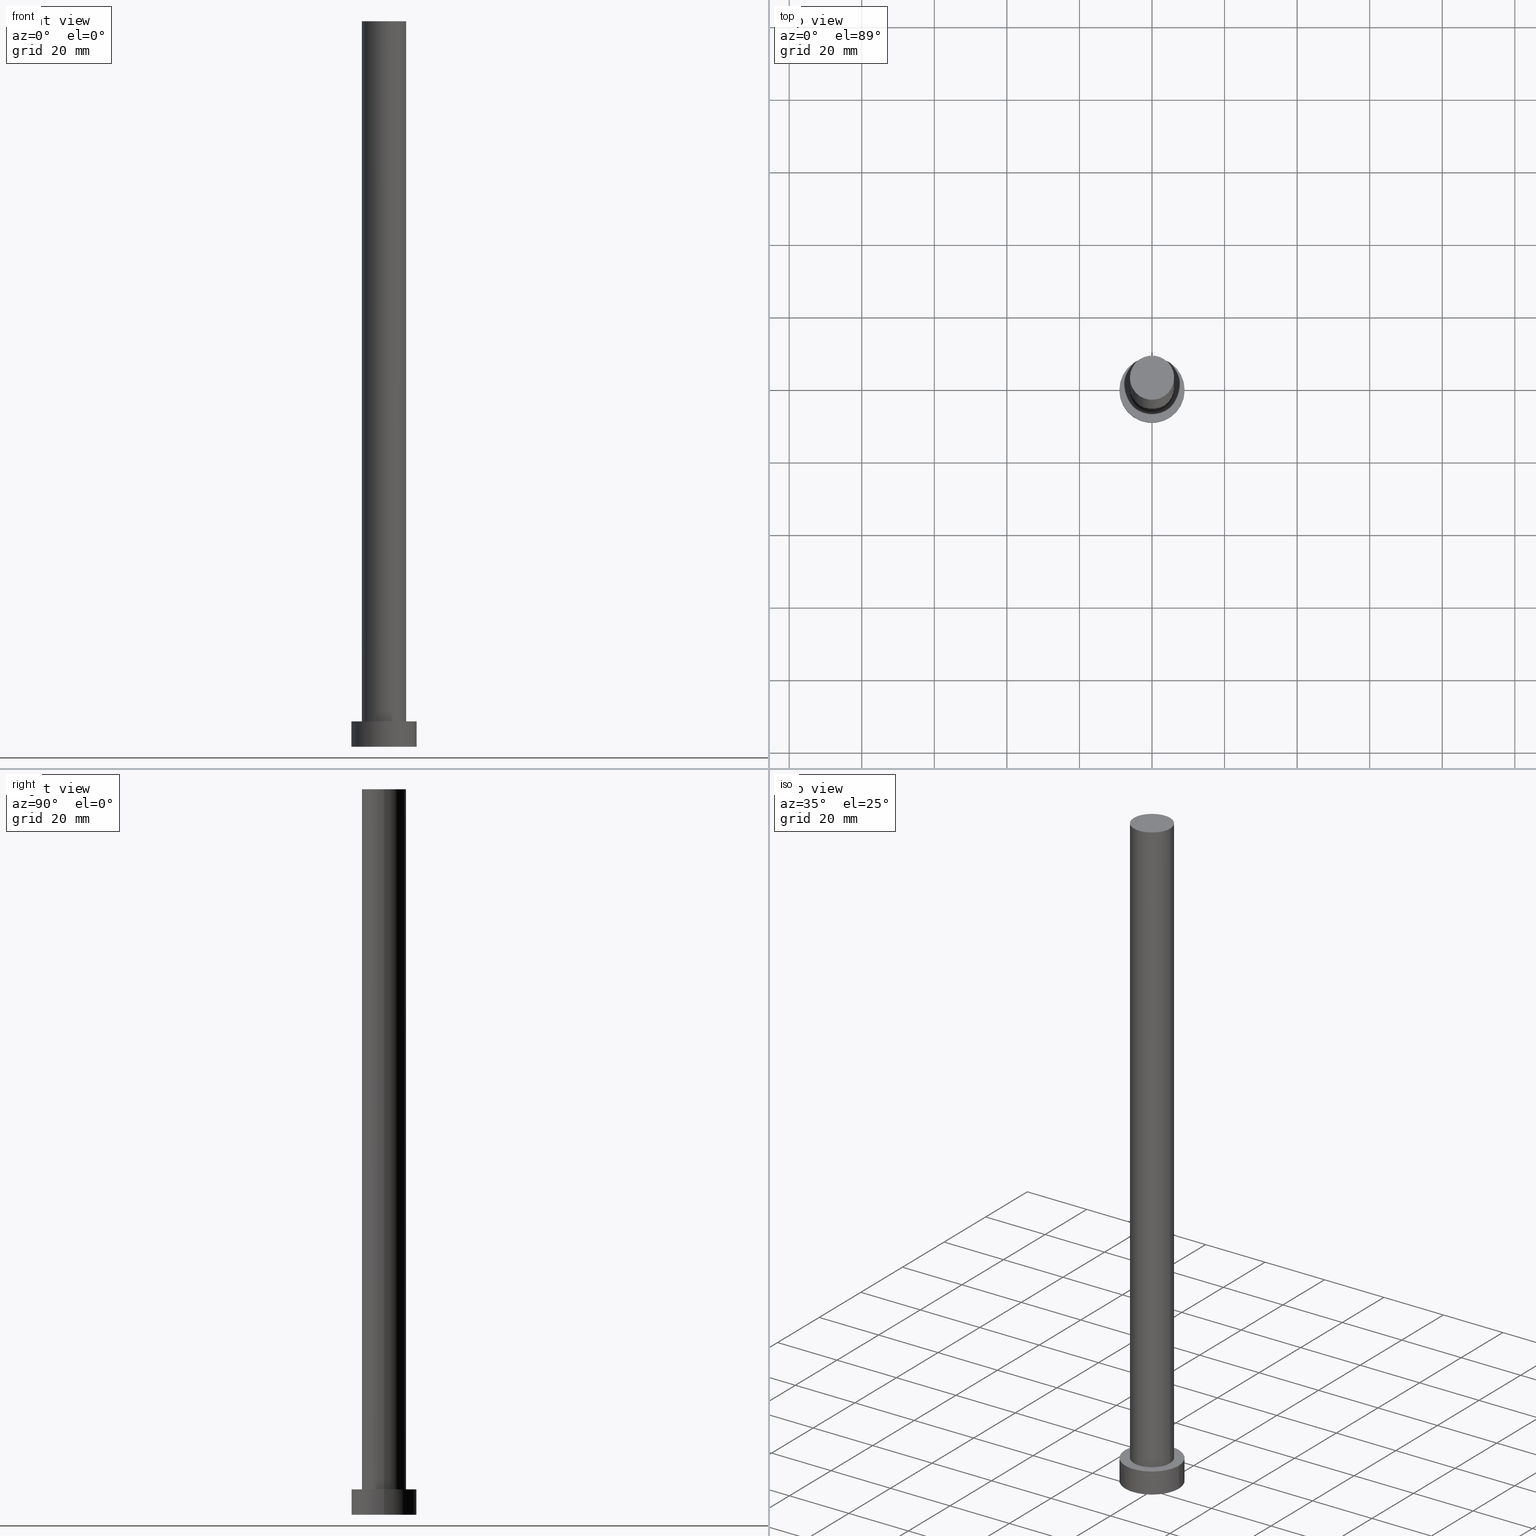
[diagram: canonical four-view strip — front | top / right | iso, engineering-drawing reading convention]
A machine part, canonical four-view strip (front | top / right | iso — engineering-drawing reading convention). The complete STEP part file that produces these views, byte-faithful:
ISO-10303-21;
HEADER;
FILE_DESCRIPTION (( 'STEP AP203' ),
    '1' );
FILE_NAME ('066f.STEP',
    '2023-02-13T11:29:26',
    ( '' ),
    ( '' ),
    'SwSTEP 2.0',
    'SolidWorks 2019',
    '' );
FILE_SCHEMA (( 'CONFIG_CONTROL_DESIGN' ));
ENDSEC;

DATA;
#1 = CYLINDRICAL_SURFACE ( 'NONE', #236, 6.099999999999999645 ) ;
#2 = CIRCLE ( 'NONE', #216, 9.000000000000000000 ) ;
#3 = CC_DESIGN_SECURITY_CLASSIFICATION ( #247, ( #7 ) ) ;
#4 = APPROVAL ( #33, 'NEUR�EN�' ) ;
#5 = DIRECTION ( 'NONE',  ( 1.000000000000000000, 0.000000000000000000, 0.000000000000000000 ) ) ;
#6 = COORDINATED_UNIVERSAL_TIME_OFFSET ( 1, 0, .AHEAD. ) ;
#7 = PRODUCT_DEFINITION_FORMATION_WITH_SPECIFIED_SOURCE ( 'LIBOVOLN�', '', #255, .NOT_KNOWN. ) ;
#8 = PERSON_AND_ORGANIZATION_ROLE ( 'design_supplier' ) ;
#9 = ORIENTED_EDGE ( 'NONE', *, *, #29, .F. ) ;
#10 = EDGE_CURVE ( 'NONE', #226, #17, #2, .T. ) ;
#11 = DIRECTION ( 'NONE',  ( 1.000000000000000000, 0.000000000000000000, 0.000000000000000000 ) ) ;
#12 = VERTEX_POINT ( 'NONE', #194 ) ;
#13 = DATE_TIME_ROLE ( 'creation_date' ) ;
#14 = FACE_OUTER_BOUND ( 'NONE', #154, .T. ) ;
#15 = CYLINDRICAL_SURFACE ( 'NONE', #152, 9.000000000000000000 ) ;
#16 = CC_DESIGN_DATE_AND_TIME_ASSIGNMENT ( #207, #65, ( #247 ) ) ;
#17 = VERTEX_POINT ( 'NONE', #148 ) ;
#18 = APPROVAL_PERSON_ORGANIZATION ( #222, #58, #225 ) ;
#19 = DIRECTION ( 'NONE',  ( 0.000000000000000000, 0.000000000000000000, 1.000000000000000000 ) ) ;
#20 = CIRCLE ( 'NONE', #161, 9.000000000000000000 ) ;
#21 = APPLICATION_PROTOCOL_DEFINITION ( 'international standard', 'config_control_design', 1994, #193 ) ;
#22 = DESIGN_CONTEXT ( 'detailed design', #182, 'design' ) ;
#23 = DIRECTION ( 'NONE',  ( -0.000000000000000000, -0.000000000000000000, -1.000000000000000000 ) ) ;
#24 = CC_DESIGN_PERSON_AND_ORGANIZATION_ASSIGNMENT ( #149, #64, ( #7 ) ) ;
#25 = CIRCLE ( 'NONE', #42, 6.099999999999999645 ) ;
#26 = EDGE_CURVE ( 'NONE', #188, #220, #30, .T. ) ;
#27 = PERSON_AND_ORGANIZATION ( #202, #140 ) ;
#28 = PERSON_AND_ORGANIZATION_ROLE ( 'classification_officer' ) ;
#29 = EDGE_CURVE ( 'NONE', #17, #226, #20, .T. ) ;
#30 = LINE ( 'NONE', #229, #107 ) ;
#31 = CC_DESIGN_PERSON_AND_ORGANIZATION_ASSIGNMENT ( #113, #183, ( #89 ) ) ;
#32 = ORIENTED_EDGE ( 'NONE', *, *, #10, .T. ) ;
#33 = APPROVAL_STATUS ( 'not_yet_approved' ) ;
#34 = ORIENTED_EDGE ( 'NONE', *, *, #253, .F. ) ;
#35 = APPROVAL_PERSON_ORGANIZATION ( #69, #4, #145 ) ;
#36 = ORIENTED_EDGE ( 'NONE', *, *, #200, .F. ) ;
#37 = EDGE_LOOP ( 'NONE', ( #246, #242, #84, #203 ) ) ;
#38 = CARTESIAN_POINT ( 'NONE',  ( -9.000000000000000000, 0.000000000000000000, 7.000000000000000000 ) ) ;
#39 = DIRECTION ( 'NONE',  ( 0.000000000000000000, 0.000000000000000000, 1.000000000000000000 ) ) ;
#40 = AXIS2_PLACEMENT_3D ( 'NONE', #92, #244, #192 ) ;
#41 = DIRECTION ( 'NONE',  ( -0.000000000000000000, -0.000000000000000000, -1.000000000000000000 ) ) ;
#42 = AXIS2_PLACEMENT_3D ( 'NONE', #160, #39, #5 ) ;
#43 = DIRECTION ( 'NONE',  ( -0.000000000000000000, -0.000000000000000000, -1.000000000000000000 ) ) ;
#44 = CC_DESIGN_PERSON_AND_ORGANIZATION_ASSIGNMENT ( #91, #8, ( #7 ) ) ;
#45 = EDGE_LOOP ( 'NONE', ( #124, #171, #90, #36 ) ) ;
#46 = COORDINATED_UNIVERSAL_TIME_OFFSET ( 1, 0, .AHEAD. ) ;
#47 = DIRECTION ( 'NONE',  ( 0.000000000000000000, 0.000000000000000000, 1.000000000000000000 ) ) ;
#48 = CLOSED_SHELL ( 'NONE', ( #127, #122, #76, #101, #78, #213, #153 ) ) ;
#49 = APPROVAL_STATUS ( 'not_yet_approved' ) ;
#50 = CC_DESIGN_APPROVAL ( #58, ( #247 ) ) ;
#51 = CC_DESIGN_DATE_AND_TIME_ASSIGNMENT ( #126, #13, ( #89 ) ) ;
#52 = ORIENTED_EDGE ( 'NONE', *, *, #123, .F. ) ;
#53 = EDGE_LOOP ( 'NONE', ( #34, #249 ) ) ;
#54 = EDGE_LOOP ( 'NONE', ( #55, #52 ) ) ;
#55 = ORIENTED_EDGE ( 'NONE', *, *, #141, .F. ) ;
#56 = PLANE ( 'NONE',  #119 ) ;
#57 =( NAMED_UNIT ( * ) SI_UNIT ( $, .STERADIAN. ) SOLID_ANGLE_UNIT ( ) );
#58 = APPROVAL ( #49, 'NEUR�EN�' ) ;
#59 = FACE_OUTER_BOUND ( 'NONE', #37, .T. ) ;
#60 = AXIS2_PLACEMENT_3D ( 'NONE', #102, #41, #103 ) ;
#61 = DIRECTION ( 'NONE',  ( 1.000000000000000000, 0.000000000000000000, 0.000000000000000000 ) ) ;
#62 = CIRCLE ( 'NONE', #83, 9.000000000000000000 ) ;
#63 = APPROVAL_DATE_TIME ( #240, #167 ) ;
#64 = PERSON_AND_ORGANIZATION_ROLE ( 'creator' ) ;
#65 = DATE_TIME_ROLE ( 'classification_date' ) ;
#66 = PRODUCT_RELATED_PRODUCT_CATEGORY ( 'detail', '', ( #255 ) ) ;
#67 = PERSON_AND_ORGANIZATION ( #202, #140 ) ;
#68 = CARTESIAN_POINT ( 'NONE',  ( 0.000000000000000000, 0.000000000000000000, 7.000000000000000000 ) ) ;
#69 = PERSON_AND_ORGANIZATION ( #202, #140 ) ;
#70 = ORIENTED_EDGE ( 'NONE', *, *, #219, .T. ) ;
#71 = DIRECTION ( 'NONE',  ( 0.000000000000000000, 0.000000000000000000, 1.000000000000000000 ) ) ;
#72 = AXIS2_PLACEMENT_3D ( 'NONE', #68, #71, #97 ) ;
#73 = LOCAL_TIME ( 12, 29, 26.00000000000000000, #143 ) ;
#74 = FACE_OUTER_BOUND ( 'NONE', #53, .T. ) ;
#75 = DIRECTION ( 'NONE',  ( 0.000000000000000000, 0.000000000000000000, 1.000000000000000000 ) ) ;
#76 = ADVANCED_FACE ( 'NONE', ( #115 ), #15, .T. ) ;
#77 = DIRECTION ( 'NONE',  ( -1.000000000000000000, 0.000000000000000000, 0.000000000000000000 ) ) ;
#78 = ADVANCED_FACE ( 'NONE', ( #74 ), #56, .F. ) ;
#79 = CARTESIAN_POINT ( 'NONE',  ( -6.099999999999999645, 0.000000000000000000, 200.0000000000000000 ) ) ;
#80 = EDGE_CURVE ( 'NONE', #170, #211, #196, .T. ) ;
#81 = PLANE ( 'NONE',  #108 ) ;
#82 = CIRCLE ( 'NONE', #172, 6.099999999999999645 ) ;
#83 = AXIS2_PLACEMENT_3D ( 'NONE', #136, #86, #137 ) ;
#84 = ORIENTED_EDGE ( 'NONE', *, *, #200, .T. ) ;
#85 = CC_DESIGN_PERSON_AND_ORGANIZATION_ASSIGNMENT ( #67, #28, ( #247 ) ) ;
#86 = DIRECTION ( 'NONE',  ( 0.000000000000000000, 0.000000000000000000, 1.000000000000000000 ) ) ;
#87 = CALENDAR_DATE ( 2023, 13, 2 ) ;
#88 = DIRECTION ( 'NONE',  ( 1.000000000000000000, 0.000000000000000000, 0.000000000000000000 ) ) ;
#89 = PRODUCT_DEFINITION ( 'NEZN�M�', '', #7, #22 ) ;
#90 = ORIENTED_EDGE ( 'NONE', *, *, #123, .T. ) ;
#91 = PERSON_AND_ORGANIZATION ( #202, #140 ) ;
#92 = CARTESIAN_POINT ( 'NONE',  ( 0.000000000000000000, 0.000000000000000000, 0.000000000000000000 ) ) ;
#93 = VECTOR ( 'NONE', #104, 1000.000000000000000 ) ;
#94 = DIRECTION ( 'NONE',  ( -1.000000000000000000, 0.000000000000000000, 0.000000000000000000 ) ) ;
#95 = APPLICATION_PROTOCOL_DEFINITION ( 'international standard', 'config_control_design', 1994, #182 ) ;
#96 = ORIENTED_EDGE ( 'NONE', *, *, #197, .T. ) ;
#97 = DIRECTION ( 'NONE',  ( 1.000000000000000000, 0.000000000000000000, -0.000000000000000000 ) ) ;
#98 = CIRCLE ( 'NONE', #146, 6.099999999999999645 ) ;
#99 = APPROVAL_PERSON_ORGANIZATION ( #27, #167, #185 ) ;
#100 = EDGE_LOOP ( 'NONE', ( #9, #96, #195, #155 ) ) ;
#101 = ADVANCED_FACE ( 'NONE', ( #166, #14 ), #245, .T. ) ;
#102 = CARTESIAN_POINT ( 'NONE',  ( 0.000000000000000000, 0.000000000000000000, 7.000000000000000000 ) ) ;
#103 = DIRECTION ( 'NONE',  ( -1.000000000000000000, 0.000000000000000000, 0.000000000000000000 ) ) ;
#104 = DIRECTION ( 'NONE',  ( -0.000000000000000000, -0.000000000000000000, -1.000000000000000000 ) ) ;
#105 = LINE ( 'NONE', #38, #205 ) ;
#106 = MECHANICAL_CONTEXT ( 'NONE', #193, 'mechanical' ) ;
#107 = VECTOR ( 'NONE', #227, 1000.000000000000000 ) ;
#108 = AXIS2_PLACEMENT_3D ( 'NONE', #139, #181, #135 ) ;
#109 = APPROVAL_STATUS ( 'not_yet_approved' ) ;
#110 = APPROVAL_DATE_TIME ( #206, #58 ) ;
#111 = DIRECTION ( 'NONE',  ( 1.000000000000000000, 0.000000000000000000, -0.000000000000000000 ) ) ;
#112 = ORIENTED_EDGE ( 'NONE', *, *, #197, .F. ) ;
#113 = PERSON_AND_ORGANIZATION ( #202, #140 ) ;
#114 = AXIS2_PLACEMENT_3D ( 'NONE', #157, #156, #120 ) ;
#115 = FACE_OUTER_BOUND ( 'NONE', #116, .T. ) ;
#116 = EDGE_LOOP ( 'NONE', ( #112, #151, #164, #210 ) ) ;
#117 = DIRECTION ( 'NONE',  ( 0.000000000000000000, 0.000000000000000000, 1.000000000000000000 ) ) ;
#118 = CARTESIAN_POINT ( 'NONE',  ( 6.099999999999999645, 7.470345474798854293E-16, 200.0000000000000000 ) ) ;
#119 = AXIS2_PLACEMENT_3D ( 'NONE', #168, #117, #111 ) ;
#120 = DIRECTION ( 'NONE',  ( 1.000000000000000000, 0.000000000000000000, 0.000000000000000000 ) ) ;
#121 = CARTESIAN_POINT ( 'NONE',  ( 0.000000000000000000, 0.000000000000000000, 7.000000000000000000 ) ) ;
#122 = ADVANCED_FACE ( 'NONE', ( #224 ), #208, .T. ) ;
#123 = EDGE_CURVE ( 'NONE', #220, #12, #82, .T. ) ;
#124 = ORIENTED_EDGE ( 'NONE', *, *, #163, .F. ) ;
#125 = CIRCLE ( 'NONE', #114, 6.099999999999999645 ) ;
#126 = DATE_AND_TIME ( #204, #190 ) ;
#127 = ADVANCED_FACE ( 'NONE', ( #214 ), #1, .T. ) ;
#128 = APPROVAL_DATE_TIME ( #221, #4 ) ;
#129 = CALENDAR_DATE ( 2023, 13, 2 ) ;
#130 = CARTESIAN_POINT ( 'NONE',  ( 0.000000000000000000, 0.000000000000000000, 7.000000000000000000 ) ) ;
#131 = MANIFOLD_SOLID_BREP ( 'P�idat vysunut�m3', #48 ) ;
#132 = DIRECTION ( 'NONE',  ( 1.000000000000000000, 0.000000000000000000, 0.000000000000000000 ) ) ;
#133 = ORIENTED_EDGE ( 'NONE', *, *, #163, .T. ) ;
#134 = DIRECTION ( 'NONE',  ( 0.000000000000000000, 0.000000000000000000, 1.000000000000000000 ) ) ;
#135 = DIRECTION ( 'NONE',  ( 1.000000000000000000, 0.000000000000000000, -0.000000000000000000 ) ) ;
#136 = CARTESIAN_POINT ( 'NONE',  ( 0.000000000000000000, 0.000000000000000000, 0.000000000000000000 ) ) ;
#137 = DIRECTION ( 'NONE',  ( 1.000000000000000000, 0.000000000000000000, 0.000000000000000000 ) ) ;
#138 = CARTESIAN_POINT ( 'NONE',  ( 9.000000000000000000, 1.102182119232617714E-15, 0.000000000000000000 ) ) ;
#139 = CARTESIAN_POINT ( 'NONE',  ( 0.000000000000000000, 0.000000000000000000, 200.0000000000000000 ) ) ;
#140 = ORGANIZATION ( 'NEUR�EN�', 'NEUR�EN�', '' ) ;
#141 = EDGE_CURVE ( 'NONE', #12, #220, #98, .T. ) ;
#142 =( GEOMETRIC_REPRESENTATION_CONTEXT ( 3 ) GLOBAL_UNCERTAINTY_ASSIGNED_CONTEXT ( ( #252 ) ) GLOBAL_UNIT_ASSIGNED_CONTEXT ( ( #238, #198, #57 ) ) REPRESENTATION_CONTEXT ( 'NONE', 'WORKASPACE' ) );
#143 = COORDINATED_UNIVERSAL_TIME_OFFSET ( 1, 0, .AHEAD. ) ;
#144 = CALENDAR_DATE ( 2023, 13, 2 ) ;
#145 = APPROVAL_ROLE ( '' ) ;
#146 = AXIS2_PLACEMENT_3D ( 'NONE', #121, #19, #61 ) ;
#147 = COORDINATED_UNIVERSAL_TIME_OFFSET ( 1, 0, .AHEAD. ) ;
#148 = CARTESIAN_POINT ( 'NONE',  ( 9.000000000000000000, 1.102182119232617714E-15, 7.000000000000000000 ) ) ;
#149 = PERSON_AND_ORGANIZATION ( #202, #140 ) ;
#150 = DIRECTION ( 'NONE',  ( -0.000000000000000000, -0.000000000000000000, -1.000000000000000000 ) ) ;
#151 = ORIENTED_EDGE ( 'NONE', *, *, #10, .F. ) ;
#152 = AXIS2_PLACEMENT_3D ( 'NONE', #130, #150, #94 ) ;
#153 = ADVANCED_FACE ( 'NONE', ( #215 ), #81, .T. ) ;
#154 = EDGE_LOOP ( 'NONE', ( #32, #175 ) ) ;
#155 = ORIENTED_EDGE ( 'NONE', *, *, #243, .F. ) ;
#156 = DIRECTION ( 'NONE',  ( 0.000000000000000000, 0.000000000000000000, 1.000000000000000000 ) ) ;
#157 = CARTESIAN_POINT ( 'NONE',  ( 0.000000000000000000, 0.000000000000000000, 200.0000000000000000 ) ) ;
#158 = DIRECTION ( 'NONE',  ( 0.000000000000000000, 0.000000000000000000, 1.000000000000000000 ) ) ;
#159 = LOCAL_TIME ( 12, 29, 26.00000000000000000, #46 ) ;
#160 = CARTESIAN_POINT ( 'NONE',  ( 0.000000000000000000, 0.000000000000000000, 200.0000000000000000 ) ) ;
#161 = AXIS2_PLACEMENT_3D ( 'NONE', #228, #75, #11 ) ;
#162 = SECURITY_CLASSIFICATION_LEVEL ( 'unclassified' ) ;
#163 = EDGE_CURVE ( 'NONE', #188, #186, #25, .T. ) ;
#164 = ORIENTED_EDGE ( 'NONE', *, *, #243, .T. ) ;
#165 = PERSON_AND_ORGANIZATION ( #202, #140 ) ;
#166 = FACE_BOUND ( 'NONE', #54, .T. ) ;
#167 = APPROVAL ( #109, 'NEUR�EN�' ) ;
#168 = CARTESIAN_POINT ( 'NONE',  ( 0.000000000000000000, 0.000000000000000000, 0.000000000000000000 ) ) ;
#169 = COORDINATED_UNIVERSAL_TIME_OFFSET ( 1, 0, .AHEAD. ) ;
#170 = VERTEX_POINT ( 'NONE', #138 ) ;
#171 = ORIENTED_EDGE ( 'NONE', *, *, #26, .T. ) ;
#172 = AXIS2_PLACEMENT_3D ( 'NONE', #176, #158, #180 ) ;
#173 = LOCAL_TIME ( 12, 29, 26.00000000000000000, #147 ) ;
#174 = ADVANCED_BREP_SHAPE_REPRESENTATION ( '066f', ( #131, #237 ), #142 ) ;
#175 = ORIENTED_EDGE ( 'NONE', *, *, #29, .T. ) ;
#176 = CARTESIAN_POINT ( 'NONE',  ( 0.000000000000000000, 0.000000000000000000, 7.000000000000000000 ) ) ;
#177 = CARTESIAN_POINT ( 'NONE',  ( -6.099999999999999645, 0.000000000000000000, 200.0000000000000000 ) ) ;
#178 = LOCAL_TIME ( 12, 29, 26.00000000000000000, #169 ) ;
#179 = CARTESIAN_POINT ( 'NONE',  ( 9.000000000000000000, 1.102182119232617714E-15, 7.000000000000000000 ) ) ;
#180 = DIRECTION ( 'NONE',  ( 1.000000000000000000, 0.000000000000000000, 0.000000000000000000 ) ) ;
#181 = DIRECTION ( 'NONE',  ( 0.000000000000000000, 0.000000000000000000, 1.000000000000000000 ) ) ;
#182 = APPLICATION_CONTEXT ( 'configuration controlled 3d designs of mechanical parts and assemblies' ) ;
#183 = PERSON_AND_ORGANIZATION_ROLE ( 'creator' ) ;
#184 = VECTOR ( 'NONE', #43, 1000.000000000000000 ) ;
#185 = APPROVAL_ROLE ( '' ) ;
#186 = VERTEX_POINT ( 'NONE', #177 ) ;
#187 = CARTESIAN_POINT ( 'NONE',  ( 0.000000000000000000, 0.000000000000000000, 0.000000000000000000 ) ) ;
#188 = VERTEX_POINT ( 'NONE', #118 ) ;
#189 = CARTESIAN_POINT ( 'NONE',  ( 0.000000000000000000, 0.000000000000000000, 7.000000000000000000 ) ) ;
#190 = LOCAL_TIME ( 12, 29, 26.00000000000000000, #6 ) ;
#191 = PERSON_AND_ORGANIZATION_ROLE ( 'design_owner' ) ;
#192 = DIRECTION ( 'NONE',  ( 1.000000000000000000, 0.000000000000000000, 0.000000000000000000 ) ) ;
#193 = APPLICATION_CONTEXT ( 'configuration controlled 3d designs of mechanical parts and assemblies' ) ;
#194 = CARTESIAN_POINT ( 'NONE',  ( -6.099999999999999645, 0.000000000000000000, 7.000000000000000000 ) ) ;
#195 = ORIENTED_EDGE ( 'NONE', *, *, #80, .T. ) ;
#196 = CIRCLE ( 'NONE', #40, 9.000000000000000000 ) ;
#197 = EDGE_CURVE ( 'NONE', #17, #170, #218, .T. ) ;
#198 =( NAMED_UNIT ( * ) PLANE_ANGLE_UNIT ( ) SI_UNIT ( $, .RADIAN. ) );
#199 = LINE ( 'NONE', #79, #93 ) ;
#200 = EDGE_CURVE ( 'NONE', #186, #12, #199, .T. ) ;
#201 = CARTESIAN_POINT ( 'NONE',  ( 6.099999999999999645, 7.470345474798854293E-16, 7.000000000000000000 ) ) ;
#202 = PERSON ( 'NEUR�EN�', 'NEUR�EN�', 'NEUR�EN�', ('NEUR�EN�'), ('NEUR�EN�'), ('NEUR�EN�') ) ;
#203 = ORIENTED_EDGE ( 'NONE', *, *, #141, .T. ) ;
#204 = CALENDAR_DATE ( 2023, 13, 2 ) ;
#205 = VECTOR ( 'NONE', #232, 1000.000000000000000 ) ;
#206 = DATE_AND_TIME ( #129, #159 ) ;
#207 = DATE_AND_TIME ( #87, #173 ) ;
#208 = CYLINDRICAL_SURFACE ( 'NONE', #60, 9.000000000000000000 ) ;
#209 = EDGE_LOOP ( 'NONE', ( #70, #133 ) ) ;
#210 = ORIENTED_EDGE ( 'NONE', *, *, #253, .T. ) ;
#211 = VERTEX_POINT ( 'NONE', #235 ) ;
#212 = CYLINDRICAL_SURFACE ( 'NONE', #231, 6.099999999999999645 ) ;
#213 = ADVANCED_FACE ( 'NONE', ( #59 ), #212, .T. ) ;
#214 = FACE_OUTER_BOUND ( 'NONE', #45, .T. ) ;
#215 = FACE_OUTER_BOUND ( 'NONE', #209, .T. ) ;
#216 = AXIS2_PLACEMENT_3D ( 'NONE', #189, #134, #132 ) ;
#217 = CC_DESIGN_APPROVAL ( #167, ( #7 ) ) ;
#218 = LINE ( 'NONE', #179, #184 ) ;
#219 = EDGE_CURVE ( 'NONE', #186, #188, #125, .T. ) ;
#220 = VERTEX_POINT ( 'NONE', #201 ) ;
#221 = DATE_AND_TIME ( #144, #73 ) ;
#222 = PERSON_AND_ORGANIZATION ( #202, #140 ) ;
#223 = CC_DESIGN_APPROVAL ( #4, ( #89 ) ) ;
#224 = FACE_OUTER_BOUND ( 'NONE', #100, .T. ) ;
#225 = APPROVAL_ROLE ( '' ) ;
#226 = VERTEX_POINT ( 'NONE', #230 ) ;
#227 = DIRECTION ( 'NONE',  ( -0.000000000000000000, -0.000000000000000000, -1.000000000000000000 ) ) ;
#228 = CARTESIAN_POINT ( 'NONE',  ( 0.000000000000000000, 0.000000000000000000, 7.000000000000000000 ) ) ;
#229 = CARTESIAN_POINT ( 'NONE',  ( 6.099999999999999645, 7.470345474798854293E-16, 200.0000000000000000 ) ) ;
#230 = CARTESIAN_POINT ( 'NONE',  ( -9.000000000000000000, 0.000000000000000000, 7.000000000000000000 ) ) ;
#231 = AXIS2_PLACEMENT_3D ( 'NONE', #251, #234, #77 ) ;
#232 = DIRECTION ( 'NONE',  ( -0.000000000000000000, -0.000000000000000000, -1.000000000000000000 ) ) ;
#233 = PRODUCT_DEFINITION_SHAPE ( 'NONE', 'NONE',  #89 ) ;
#234 = DIRECTION ( 'NONE',  ( -0.000000000000000000, -0.000000000000000000, -1.000000000000000000 ) ) ;
#235 = CARTESIAN_POINT ( 'NONE',  ( -9.000000000000000000, 0.000000000000000000, 0.000000000000000000 ) ) ;
#236 = AXIS2_PLACEMENT_3D ( 'NONE', #254, #23, #250 ) ;
#237 = AXIS2_PLACEMENT_3D ( 'NONE', #187, #47, #88 ) ;
#238 =( LENGTH_UNIT ( ) NAMED_UNIT ( * ) SI_UNIT ( .MILLI., .METRE. ) );
#239 = SHAPE_DEFINITION_REPRESENTATION ( #233, #174 ) ;
#240 = DATE_AND_TIME ( #241, #178 ) ;
#241 = CALENDAR_DATE ( 2023, 13, 2 ) ;
#242 = ORIENTED_EDGE ( 'NONE', *, *, #219, .F. ) ;
#243 = EDGE_CURVE ( 'NONE', #226, #211, #105, .T. ) ;
#244 = DIRECTION ( 'NONE',  ( 0.000000000000000000, 0.000000000000000000, 1.000000000000000000 ) ) ;
#245 = PLANE ( 'NONE',  #72 ) ;
#246 = ORIENTED_EDGE ( 'NONE', *, *, #26, .F. ) ;
#247 = SECURITY_CLASSIFICATION ( '', '', #162 ) ;
#248 = CC_DESIGN_PERSON_AND_ORGANIZATION_ASSIGNMENT ( #165, #191, ( #255 ) ) ;
#249 = ORIENTED_EDGE ( 'NONE', *, *, #80, .F. ) ;
#250 = DIRECTION ( 'NONE',  ( -1.000000000000000000, 0.000000000000000000, 0.000000000000000000 ) ) ;
#251 = CARTESIAN_POINT ( 'NONE',  ( 0.000000000000000000, 0.000000000000000000, 200.0000000000000000 ) ) ;
#252 = UNCERTAINTY_MEASURE_WITH_UNIT (LENGTH_MEASURE( 1.000000000000000082E-05 ), #238, 'distance_accuracy_value', 'NONE');
#253 = EDGE_CURVE ( 'NONE', #211, #170, #62, .T. ) ;
#254 = CARTESIAN_POINT ( 'NONE',  ( 0.000000000000000000, 0.000000000000000000, 200.0000000000000000 ) ) ;
#255 = PRODUCT ( '066f', '066f', '', ( #106 ) ) ;
ENDSEC;
END-ISO-10303-21;
